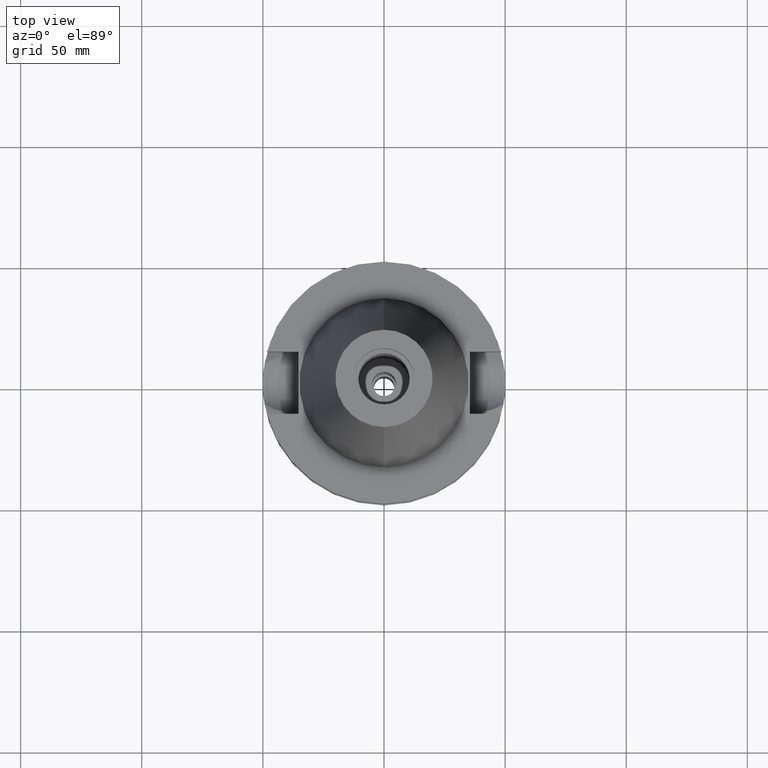
[diagram: clean part render]
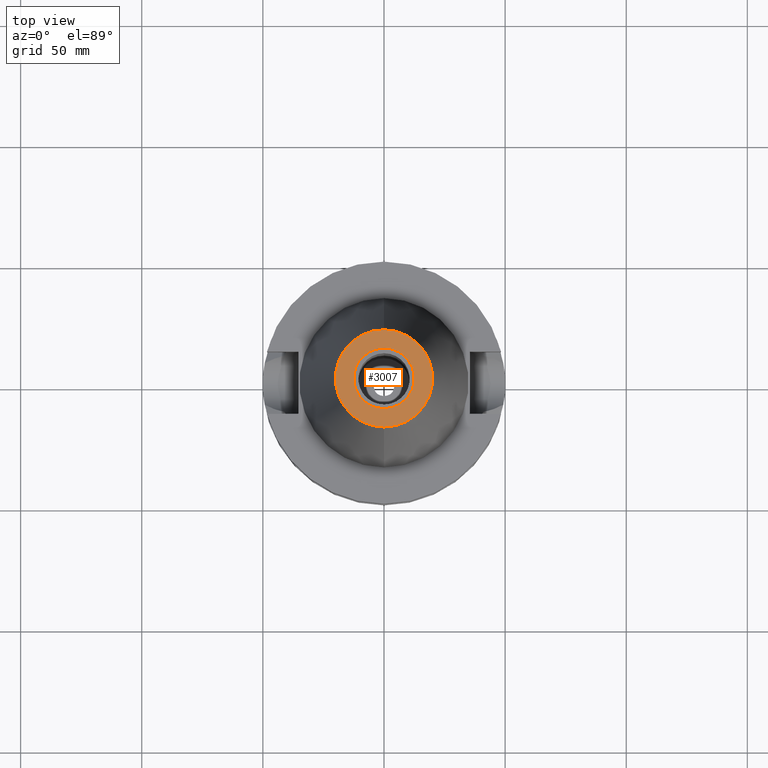
[diagram: same view with one face highlighted and labeled with its STEP entity id]
A machine part, top view. The second image highlights one B-rep face of the part: STEP entity #3007.
In plain terms, the highlighted planar face has unit normal (0, 0, -1).
Its self-contained STEP definition (entity closure, byte-faithful):
#155 = FACE_BOUND ( 'NONE', #2681, .T. ) ;
#283 = EDGE_LOOP ( 'NONE', ( #1739, #1871 ) ) ;
#298 = EDGE_CURVE ( 'NONE', #2385, #2927, #411, .T. ) ;
#315 = CIRCLE ( 'NONE', #974, 20.07942971896000017 ) ;
#411 = CIRCLE ( 'NONE', #668, 20.07942971896000017 ) ;
#423 = CIRCLE ( 'NONE', #1155, 12.50000000000000000 ) ;
#444 = CARTESIAN_POINT ( 'NONE',  ( 0.0000000000000000000, 12.50000000000000000, 101.7999999999999972 ) ) ;
#563 = CARTESIAN_POINT ( 'NONE',  ( 0.0000000000000000000, 1.847992019912999597E-14, 101.7999999999999972 ) ) ;
#616 = DIRECTION ( 'NONE',  ( 0.0000000000000000000, 0.0000000000000000000, 1.000000000000000000 ) ) ;
#666 = AXIS2_PLACEMENT_3D ( 'NONE', #2122, #921, #1162 ) ;
#668 = AXIS2_PLACEMENT_3D ( 'NONE', #1066, #1829, #1605 ) ;
#911 = VERTEX_POINT ( 'NONE', #444 ) ;
#921 = DIRECTION ( 'NONE',  ( 0.0000000000000000000, 0.0000000000000000000, 1.000000000000000000 ) ) ;
#923 = EDGE_CURVE ( 'NONE', #2919, #911, #2241, .T. ) ;
#974 = AXIS2_PLACEMENT_3D ( 'NONE', #563, #2043, #1056 ) ;
#1050 = AXIS2_PLACEMENT_3D ( 'NONE', #1402, #3104, #2378 ) ;
#1056 = DIRECTION ( 'NONE',  ( 0.0000000000000000000, 1.000000000000000000, 0.0000000000000000000 ) ) ;
#1066 = CARTESIAN_POINT ( 'NONE',  ( 0.0000000000000000000, 1.847992019912999597E-14, 101.7999999999999972 ) ) ;
#1155 = AXIS2_PLACEMENT_3D ( 'NONE', #2066, #616, #2032 ) ;
#1162 = DIRECTION ( 'NONE',  ( 0.0000000000000000000, -1.000000000000000000, 0.0000000000000000000 ) ) ;
#1294 = CARTESIAN_POINT ( 'NONE',  ( 0.0000000000000000000, -20.07942971896000017, 101.7999999999999972 ) ) ;
#1402 = CARTESIAN_POINT ( 'NONE',  ( 0.0000000000000000000, 2.471337240678999545E-14, 101.7999999999999972 ) ) ;
#1605 = DIRECTION ( 'NONE',  ( 0.0000000000000000000, -1.000000000000000000, 0.0000000000000000000 ) ) ;
#1646 = EDGE_CURVE ( 'NONE', #2927, #2385, #315, .T. ) ;
#1662 = ORIENTED_EDGE ( 'NONE', *, *, #923, .F. ) ;
#1739 = ORIENTED_EDGE ( 'NONE', *, *, #1646, .F. ) ;
#1829 = DIRECTION ( 'NONE',  ( 0.0000000000000000000, 0.0000000000000000000, -1.000000000000000000 ) ) ;
#1871 = ORIENTED_EDGE ( 'NONE', *, *, #298, .F. ) ;
#1892 = FACE_OUTER_BOUND ( 'NONE', #283, .T. ) ;
#2032 = DIRECTION ( 'NONE',  ( 0.0000000000000000000, 1.000000000000000000, 0.0000000000000000000 ) ) ;
#2043 = DIRECTION ( 'NONE',  ( 0.0000000000000000000, 0.0000000000000000000, -1.000000000000000000 ) ) ;
#2059 = ORIENTED_EDGE ( 'NONE', *, *, #2337, .F. ) ;
#2066 = CARTESIAN_POINT ( 'NONE',  ( 0.0000000000000000000, 2.629194213088999901E-14, 101.7999999999999972 ) ) ;
#2122 = CARTESIAN_POINT ( 'NONE',  ( 0.0000000000000000000, 2.629194213088999901E-14, 101.7999999999999972 ) ) ;
#2148 = CARTESIAN_POINT ( 'NONE',  ( 0.0000000000000000000, 20.07942971896000017, 101.7999999999999972 ) ) ;
#2241 = CIRCLE ( 'NONE', #666, 12.50000000000000000 ) ;
#2337 = EDGE_CURVE ( 'NONE', #911, #2919, #423, .T. ) ;
#2378 = DIRECTION ( 'NONE',  ( 0.0000000000000000000, -1.000000000000000000, 0.0000000000000000000 ) ) ;
#2385 = VERTEX_POINT ( 'NONE', #1294 ) ;
#2389 = PLANE ( 'NONE',  #1050 ) ;
#2681 = EDGE_LOOP ( 'NONE', ( #2059, #1662 ) ) ;
#2821 = CARTESIAN_POINT ( 'NONE',  ( 0.0000000000000000000, -12.50000000000000000, 101.7999999999999972 ) ) ;
#2919 = VERTEX_POINT ( 'NONE', #2821 ) ;
#2927 = VERTEX_POINT ( 'NONE', #2148 ) ;
#3007 = ADVANCED_FACE ( 'NONE', ( #1892, #155 ), #2389, .F. ) ;
#3104 = DIRECTION ( 'NONE',  ( 0.0000000000000000000, 0.0000000000000000000, -1.000000000000000000 ) ) ;